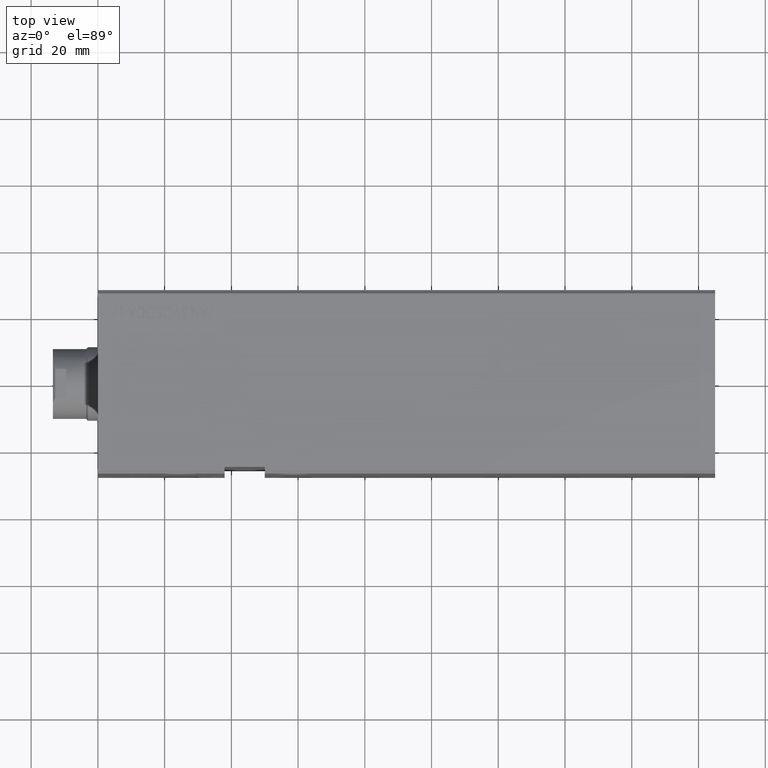
[diagram: clean part render]
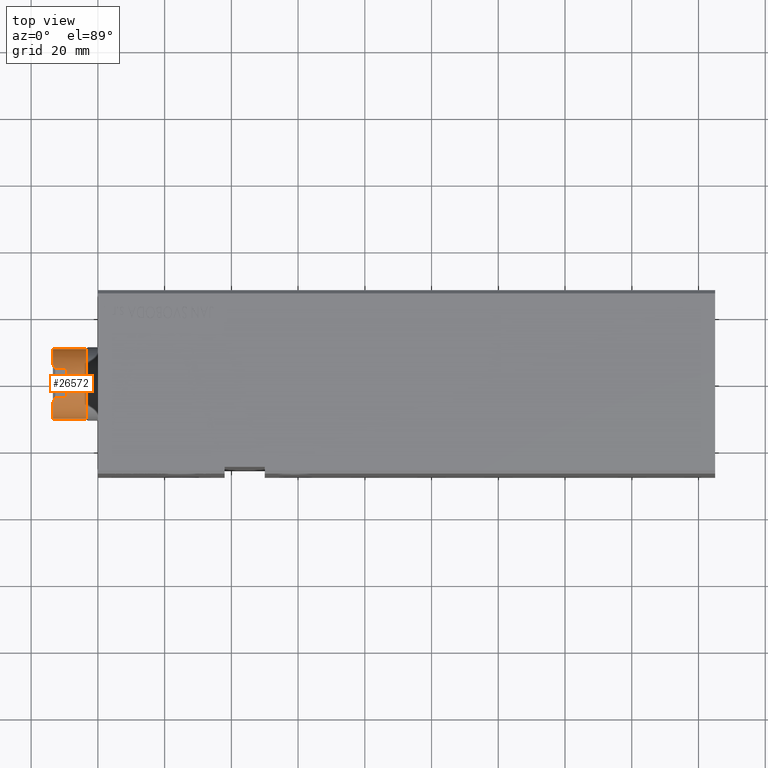
[diagram: same view with one face highlighted and labeled with its STEP entity id]
A machine part, top view. The second image highlights one B-rep face of the part: STEP entity #26572.
In plain terms, the highlighted cylindrical surface (edge-blend (fillet) strip) has radius 10.46 mm, axis along (-1, -0, -0).
Its self-contained STEP definition (entity closure, byte-faithful):
#999 = CARTESIAN_POINT ( 'NONE',  ( 9.500000000000000000, -4.377396486497458383, 167.7900000000000489 ) ) ;
#1118 = ORIENTED_EDGE ( 'NONE', *, *, #34956, .F. ) ;
#1204 = DIRECTION ( 'NONE',  ( -0.000000000000000000, -1.830961800348780351E-16, 1.000000000000000000 ) ) ;
#1403 = LINE ( 'NONE', #1599, #36382 ) ;
#1498 = ORIENTED_EDGE ( 'NONE', *, *, #5009, .T. ) ;
#1599 = CARTESIAN_POINT ( 'NONE',  ( 0.000000000000000000, -10.46000000000003105, 168.5000000000000000 ) ) ;
#1765 = CARTESIAN_POINT ( 'NONE',  ( 9.500000000000000000, -4.377396486497457495, 164.5000000000000000 ) ) ;
#2116 = VERTEX_POINT ( 'NONE', #38440 ) ;
#2353 = VERTEX_POINT ( 'NONE', #15422 ) ;
#2483 = DIRECTION ( 'NONE',  ( -0.000000000000000000, -1.830961800348780351E-16, 1.000000000000000000 ) ) ;
#2625 = CARTESIAN_POINT ( 'NONE',  ( 8.790000000000025793, 5.669876541865724207, 168.5000000000000000 ) ) ;
#2826 = CARTESIAN_POINT ( 'NONE',  ( 9.500000000000000000, 4.377396486497395323, 167.7900000000000489 ) ) ;
#3181 = DIRECTION ( 'NONE',  ( -0.000000000000000000, -1.830961800348780351E-16, 1.000000000000000000 ) ) ;
#3334 = AXIS2_PLACEMENT_3D ( 'NONE', #24743, #3181, #36138 ) ;
#3385 = DIRECTION ( 'NONE',  ( -0.000000000000000000, -1.830961800348780351E-16, 1.000000000000000000 ) ) ;
#3805 = CIRCLE ( 'NONE', #16551, 10.46000000000000085 ) ;
#4800 = EDGE_CURVE ( 'NONE', #30588, #12184, #33127, .T. ) ;
#4978 = AXIS2_PLACEMENT_3D ( 'NONE', #6375, #3385, #12153 ) ;
#5009 = EDGE_CURVE ( 'NONE', #2116, #25096, #12066, .T. ) ;
#5820 = CARTESIAN_POINT ( 'NONE',  ( 9.293949384395547852, 4.824575729748585395, 167.9960506156045312 ) ) ;
#5908 = ORIENTED_EDGE ( 'NONE', *, *, #34777, .T. ) ;
#6375 = CARTESIAN_POINT ( 'NONE',  ( 0.000000000000000000, -3.085170633587695342E-14, 168.5000000000000000 ) ) ;
#6785 = VERTEX_POINT ( 'NONE', #1765 ) ;
#7175 = DIRECTION ( 'NONE',  ( 0.000000000000000000, -1.000000000000000000, 0.000000000000000000 ) ) ;
#7644 = EDGE_LOOP ( 'NONE', ( #1498, #30431, #20804, #5908, #30972, #23768, #23962, #20647, #39335, #1118 ) ) ;
#8775 = CYLINDRICAL_SURFACE ( 'NONE', #4978, 10.46000000000000085 ) ;
#8864 = CARTESIAN_POINT ( 'NONE',  ( 9.500000000000000000, 4.377396486497396211, 164.5000000000000000 ) ) ;
#9009 = CARTESIAN_POINT ( 'NONE',  ( 0.000000000000000000, -10.46000000000003105, 168.5000000000000000 ) ) ;
#9522 = CARTESIAN_POINT ( 'NONE',  ( 1.280980551908131527E-15, 10.45999999999996888, 168.5000000000000000 ) ) ;
#9751 = LINE ( 'NONE', #18728, #18519 ) ;
#10160 = LINE ( 'NONE', #21954, #37771 ) ;
#10349 = DIRECTION ( 'NONE',  ( -0.000000000000000000, -1.830961800348780351E-16, 1.000000000000000000 ) ) ;
#10849 = EDGE_CURVE ( 'NONE', #25096, #33662, #31138, .T. ) ;
#10890 = CARTESIAN_POINT ( 'NONE',  ( 8.790000000000025793, -5.669876541865786379, 168.5000000000000000 ) ) ;
#11436 = CARTESIAN_POINT ( 'NONE',  ( 9.056889589612575620, -5.256118063110208460, 168.2331104103874964 ) ) ;
#11740 = EDGE_CURVE ( 'NONE', #13636, #33662, #39026, .T. ) ;
#12066 = CIRCLE ( 'NONE', #15213, 10.45999999999999908 ) ;
#12153 = DIRECTION ( 'NONE',  ( 0.000000000000000000, -1.000000000000000000, 0.000000000000000000 ) ) ;
#12184 = VERTEX_POINT ( 'NONE', #10890 ) ;
#13345 = CARTESIAN_POINT ( 'NONE',  ( 1.280980551908131527E-15, 10.45999999999996888, 168.5000000000000000 ) ) ;
#13636 = VERTEX_POINT ( 'NONE', #17437 ) ;
#14648 = DIRECTION ( 'NONE',  ( 0.000000000000000000, -1.000000000000000000, 0.000000000000000000 ) ) ;
#14786 = CARTESIAN_POINT ( 'NONE',  ( 9.056889589612573843, 5.256118063110149841, 168.2331104103874964 ) ) ;
#15213 = AXIS2_PLACEMENT_3D ( 'NONE', #20113, #2483, #14648 ) ;
#15422 = CARTESIAN_POINT ( 'NONE',  ( 9.500000000000000000, 4.377396486497395323, 167.7900000000000489 ) ) ;
#15886 = AXIS2_PLACEMENT_3D ( 'NONE', #34331, #28135, #7175 ) ;
#16551 = AXIS2_PLACEMENT_3D ( 'NONE', #21639, #18646, #30852 ) ;
#17437 = CARTESIAN_POINT ( 'NONE',  ( 8.790000000000025793, 5.669876541865724207, 168.5000000000000000 ) ) ;
#18317 = DIRECTION ( 'NONE',  ( -0.000000000000000000, -1.830961800348780351E-16, 1.000000000000000000 ) ) ;
#18519 = VECTOR ( 'NONE', #18317, 1000.000000000000000 ) ;
#18646 = DIRECTION ( 'NONE',  ( -0.000000000000000000, -0.000000000000000000, -1.000000000000000000 ) ) ;
#18728 = CARTESIAN_POINT ( 'NONE',  ( 9.500000000000000000, -4.377396486497458383, 168.5000000000000000 ) ) ;
#20113 = CARTESIAN_POINT ( 'NONE',  ( 0.000000000000000000, -2.902074453552816907E-14, 158.5000000000000000 ) ) ;
#20647 = ORIENTED_EDGE ( 'NONE', *, *, #23733, .T. ) ;
#20804 = ORIENTED_EDGE ( 'NONE', *, *, #11740, .F. ) ;
#21639 = CARTESIAN_POINT ( 'NONE',  ( 0.000000000000000000, -3.011932161573743842E-14, 164.5000000000000000 ) ) ;
#21900 =( BOUNDED_CURVE ( )  B_SPLINE_CURVE ( 3, ( #2625, #14786, #5820, #2826 ),
 .UNSPECIFIED., .F., .F. ) 
 B_SPLINE_CURVE_WITH_KNOTS ( ( 4, 4 ),
 ( 2.568714171481423669, 2.709811500076702462 ),
 .UNSPECIFIED. ) 
 CURVE ( )  GEOMETRIC_REPRESENTATION_ITEM ( )  RATIONAL_B_SPLINE_CURVE ( ( 1.000000000000000000, 0.9983416499762386431, 0.9983416499762386431, 1.000000000000000000 ) ) 
 REPRESENTATION_ITEM ( '' )  );
#21954 = CARTESIAN_POINT ( 'NONE',  ( 9.500000000000000000, 4.377396486497395323, 168.5000000000000000 ) ) ;
#22342 = DIRECTION ( 'NONE',  ( 0.000000000000000000, 1.830961800348780351E-16, -1.000000000000000000 ) ) ;
#23733 = EDGE_CURVE ( 'NONE', #28433, #12184, #24461, .T. ) ;
#23768 = ORIENTED_EDGE ( 'NONE', *, *, #26836, .T. ) ;
#23962 = ORIENTED_EDGE ( 'NONE', *, *, #35093, .T. ) ;
#24203 = CARTESIAN_POINT ( 'NONE',  ( 8.790000000000025793, -5.669876541865786379, 168.5000000000000000 ) ) ;
#24461 =( BOUNDED_CURVE ( )  B_SPLINE_CURVE ( 3, ( #27019, #33210, #11436, #24203 ),
 .UNSPECIFIED., .F., .F. ) 
 B_SPLINE_CURVE_WITH_KNOTS ( ( 4, 4 ),
 ( 3.573373807102884214, 3.714471135698162563 ),
 .UNSPECIFIED. ) 
 CURVE ( )  GEOMETRIC_REPRESENTATION_ITEM ( )  RATIONAL_B_SPLINE_CURVE ( ( 1.000000000000000000, 0.9983416499762386431, 0.9983416499762386431, 1.000000000000000000 ) ) 
 REPRESENTATION_ITEM ( '' )  );
#24743 = CARTESIAN_POINT ( 'NONE',  ( 0.000000000000000000, -3.085170633587695342E-14, 168.5000000000000000 ) ) ;
#25096 = VERTEX_POINT ( 'NONE', #25363 ) ;
#25363 = CARTESIAN_POINT ( 'NONE',  ( 0.000000000000000000, 10.45999999999996888, 158.5000000000000000 ) ) ;
#26572 = ADVANCED_FACE ( 'NONE', ( #33734 ), #8775, .T. ) ;
#26836 = EDGE_CURVE ( 'NONE', #31105, #6785, #3805, .T. ) ;
#27019 = CARTESIAN_POINT ( 'NONE',  ( 9.500000000000000000, -4.377396486497458383, 167.7900000000000489 ) ) ;
#28135 = DIRECTION ( 'NONE',  ( -0.000000000000000000, -1.830961800348780351E-16, 1.000000000000000000 ) ) ;
#28433 = VERTEX_POINT ( 'NONE', #999 ) ;
#30431 = ORIENTED_EDGE ( 'NONE', *, *, #10849, .T. ) ;
#30588 = VERTEX_POINT ( 'NONE', #9009 ) ;
#30852 = DIRECTION ( 'NONE',  ( -1.000000000000000000, 0.000000000000000000, 0.000000000000000000 ) ) ;
#30972 = ORIENTED_EDGE ( 'NONE', *, *, #38927, .T. ) ;
#31105 = VERTEX_POINT ( 'NONE', #8864 ) ;
#31138 = LINE ( 'NONE', #13345, #32641 ) ;
#32641 = VECTOR ( 'NONE', #10349, 1000.000000000000000 ) ;
#33127 = CIRCLE ( 'NONE', #15886, 10.46000000000000085 ) ;
#33210 = CARTESIAN_POINT ( 'NONE',  ( 9.293949384395546076, -4.824575729748648456, 167.9960506156045312 ) ) ;
#33662 = VERTEX_POINT ( 'NONE', #9522 ) ;
#33734 = FACE_OUTER_BOUND ( 'NONE', #7644, .T. ) ;
#34331 = CARTESIAN_POINT ( 'NONE',  ( 0.000000000000000000, -3.085170633587695342E-14, 168.5000000000000000 ) ) ;
#34777 = EDGE_CURVE ( 'NONE', #13636, #2353, #21900, .T. ) ;
#34956 = EDGE_CURVE ( 'NONE', #2116, #30588, #1403, .T. ) ;
#35093 = EDGE_CURVE ( 'NONE', #6785, #28433, #9751, .T. ) ;
#36138 = DIRECTION ( 'NONE',  ( 0.000000000000000000, -1.000000000000000000, 0.000000000000000000 ) ) ;
#36382 = VECTOR ( 'NONE', #1204, 1000.000000000000000 ) ;
#37771 = VECTOR ( 'NONE', #22342, 1000.000000000000000 ) ;
#38440 = CARTESIAN_POINT ( 'NONE',  ( 1.314046015485110656E-15, -10.46000000000002750, 158.5000000000000000 ) ) ;
#38927 = EDGE_CURVE ( 'NONE', #2353, #31105, #10160, .T. ) ;
#39026 = CIRCLE ( 'NONE', #3334, 10.46000000000000085 ) ;
#39335 = ORIENTED_EDGE ( 'NONE', *, *, #4800, .F. ) ;